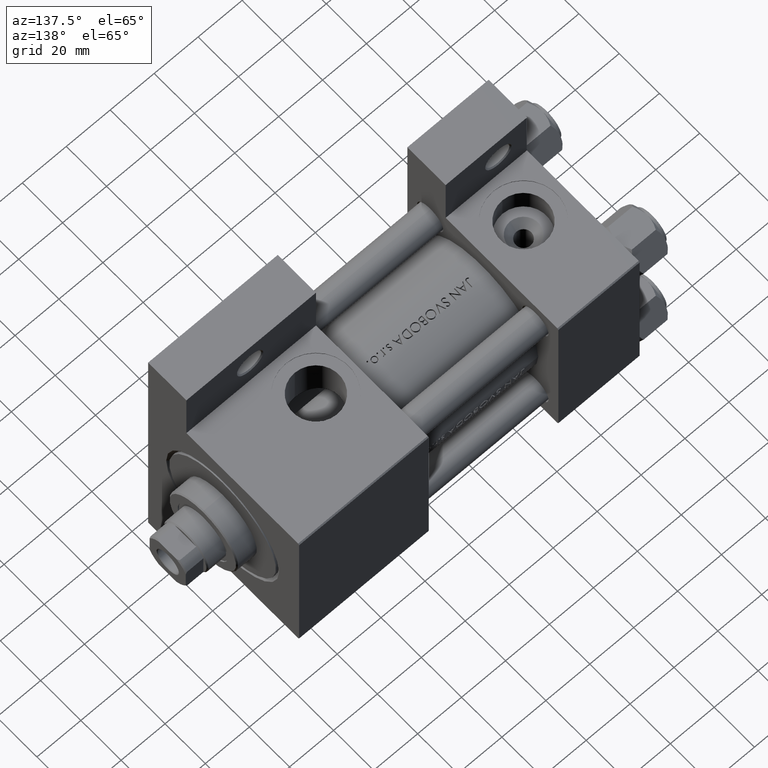
[diagram: clean part render]
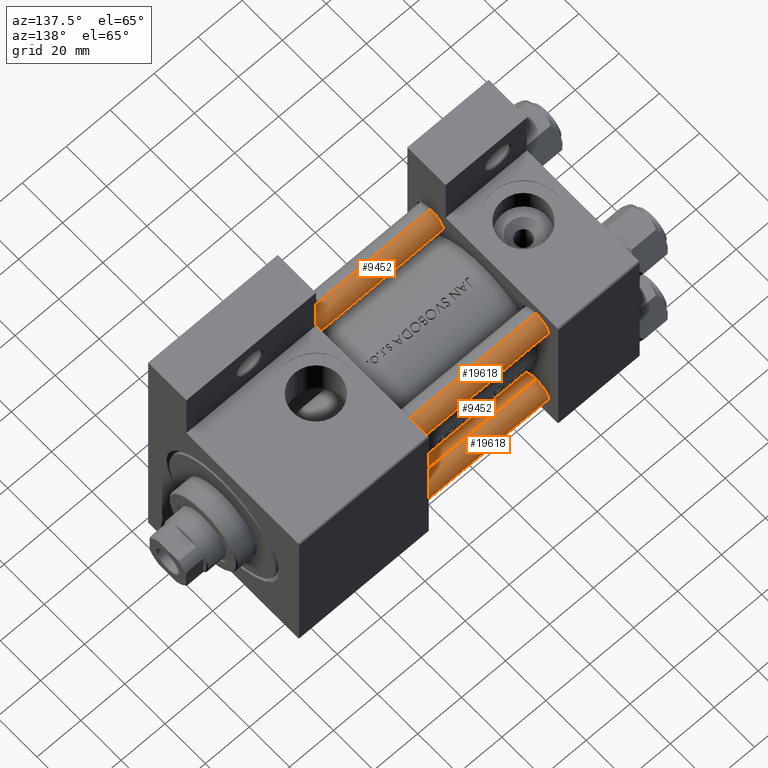
[diagram: same view with one multi-face feature highlighted, each face labeled with its STEP entity id]
A machine part, auxiliary view. The highlighted faces form ONE feature: a constant-radius fillet chain: 4 tangent blend faces with common blend radius 6 mm. The faces share edges in the B-rep.
Their STEP definitions:
[1] entity #19618 (Cylinder):
#449 = LINE ( 'NONE', #15656, #4672 ) ;
#481 = CARTESIAN_POINT ( 'NONE',  ( 0.000000000000000000, 0.000000000000000000, 125.0000000000000000 ) ) ;
#1382 = ORIENTED_EDGE ( 'NONE', *, *, #14736, .T. ) ;
#4006 = CARTESIAN_POINT ( 'NONE',  ( -6.000000000000000888, 0.000000000000000000, 124.5000000000000000 ) ) ;
#4672 = VECTOR ( 'NONE', #30845, 1000.000000000000000 ) ;
#5859 = ORIENTED_EDGE ( 'NONE', *, *, #31709, .T. ) ;
#7418 = VERTEX_POINT ( 'NONE', #13093 ) ;
#7969 = FACE_OUTER_BOUND ( 'NONE', #34407, .T. ) ;
#9539 = CARTESIAN_POINT ( 'NONE',  ( 6.000000000000000888, 7.347880794884120722E-16, 124.5000000000000000 ) ) ;
#9569 = EDGE_CURVE ( 'NONE', #23323, #7418, #449, .T. ) ;
#9900 = VECTOR ( 'NONE', #41150, 1000.000000000000000 ) ;
#11423 = CARTESIAN_POINT ( 'NONE',  ( 0.000000000000000000, 0.000000000000000000, 0.4999999999999865663 ) ) ;
#11956 = CIRCLE ( 'NONE', #19900, 6.000000000000000888 ) ;
#13093 = CARTESIAN_POINT ( 'NONE',  ( 6.000000000000000888, 7.347880794884120722E-16, 0.4999999999999865663 ) ) ;
#14689 = EDGE_CURVE ( 'NONE', #43238, #48323, #22454, .T. ) ;
#14736 = EDGE_CURVE ( 'NONE', #43238, #23323, #31359, .T. ) ;
#15656 = CARTESIAN_POINT ( 'NONE',  ( 6.000000000000000888, 7.347880794884120722E-16, 125.0000000000000000 ) ) ;
#16233 = DIRECTION ( 'NONE',  ( 0.000000000000000000, 0.000000000000000000, -1.000000000000000000 ) ) ;
#19618 = ADVANCED_FACE ( 'NONE', ( #7969 ), #23145, .T. ) ;
#19900 = AXIS2_PLACEMENT_3D ( 'NONE', #11423, #38306, #30338 ) ;
#20370 = AXIS2_PLACEMENT_3D ( 'NONE', #481, #27629, #42820 ) ;
#22454 = LINE ( 'NONE', #25951, #9900 ) ;
#23145 = CYLINDRICAL_SURFACE ( 'NONE', #20370, 6.000000000000000888 ) ;
#23323 = VERTEX_POINT ( 'NONE', #9539 ) ;
#25951 = CARTESIAN_POINT ( 'NONE',  ( -6.000000000000000888, 0.000000000000000000, 125.0000000000000000 ) ) ;
#27368 = ORIENTED_EDGE ( 'NONE', *, *, #14689, .F. ) ;
#27629 = DIRECTION ( 'NONE',  ( -0.000000000000000000, -0.000000000000000000, -1.000000000000000000 ) ) ;
#30338 = DIRECTION ( 'NONE',  ( 1.000000000000000000, 0.000000000000000000, 0.000000000000000000 ) ) ;
#30845 = DIRECTION ( 'NONE',  ( -0.000000000000000000, -0.000000000000000000, -1.000000000000000000 ) ) ;
#31175 = CARTESIAN_POINT ( 'NONE',  ( 0.000000000000000000, 0.000000000000000000, 124.5000000000000000 ) ) ;
#31359 = CIRCLE ( 'NONE', #40889, 6.000000000000000888 ) ;
#31418 = DIRECTION ( 'NONE',  ( 1.000000000000000000, 0.000000000000000000, 0.000000000000000000 ) ) ;
#31709 = EDGE_CURVE ( 'NONE', #7418, #48323, #11956, .T. ) ;
#34407 = EDGE_LOOP ( 'NONE', ( #1382, #38275, #5859, #27368 ) ) ;
#38275 = ORIENTED_EDGE ( 'NONE', *, *, #9569, .T. ) ;
#38306 = DIRECTION ( 'NONE',  ( -0.000000000000000000, -0.000000000000000000, 1.000000000000000000 ) ) ;
#39762 = CARTESIAN_POINT ( 'NONE',  ( -6.000000000000000888, 0.000000000000000000, 0.4999999999999865663 ) ) ;
#40889 = AXIS2_PLACEMENT_3D ( 'NONE', #31175, #16233, #31418 ) ;
#41150 = DIRECTION ( 'NONE',  ( -0.000000000000000000, -0.000000000000000000, -1.000000000000000000 ) ) ;
#42820 = DIRECTION ( 'NONE',  ( -1.000000000000000000, 0.000000000000000000, 0.000000000000000000 ) ) ;
#43238 = VERTEX_POINT ( 'NONE', #4006 ) ;
#48323 = VERTEX_POINT ( 'NONE', #39762 ) ;
[2] entity #9452 (Cylinder):
#449 = LINE ( 'NONE', #15656, #4672 ) ;
#3194 = CARTESIAN_POINT ( 'NONE',  ( 0.000000000000000000, 0.000000000000000000, 125.0000000000000000 ) ) ;
#4006 = CARTESIAN_POINT ( 'NONE',  ( -6.000000000000000888, 0.000000000000000000, 124.5000000000000000 ) ) ;
#4672 = VECTOR ( 'NONE', #30845, 1000.000000000000000 ) ;
#4840 = CIRCLE ( 'NONE', #47027, 6.000000000000000888 ) ;
#5768 = ORIENTED_EDGE ( 'NONE', *, *, #14689, .T. ) ;
#6393 = CARTESIAN_POINT ( 'NONE',  ( 0.000000000000000000, 0.000000000000000000, 0.4999999999999865663 ) ) ;
#6423 = ORIENTED_EDGE ( 'NONE', *, *, #41029, .T. ) ;
#6455 = FACE_OUTER_BOUND ( 'NONE', #18244, .T. ) ;
#6931 = CYLINDRICAL_SURFACE ( 'NONE', #21349, 6.000000000000000888 ) ;
#7418 = VERTEX_POINT ( 'NONE', #13093 ) ;
#9452 = ADVANCED_FACE ( 'NONE', ( #6455 ), #6931, .T. ) ;
#9539 = CARTESIAN_POINT ( 'NONE',  ( 6.000000000000000888, 7.347880794884120722E-16, 124.5000000000000000 ) ) ;
#9569 = EDGE_CURVE ( 'NONE', #23323, #7418, #449, .T. ) ;
#9900 = VECTOR ( 'NONE', #41150, 1000.000000000000000 ) ;
#10258 = DIRECTION ( 'NONE',  ( 0.000000000000000000, 0.000000000000000000, -1.000000000000000000 ) ) ;
#10981 = CARTESIAN_POINT ( 'NONE',  ( 0.000000000000000000, 0.000000000000000000, 124.5000000000000000 ) ) ;
#13093 = CARTESIAN_POINT ( 'NONE',  ( 6.000000000000000888, 7.347880794884120722E-16, 0.4999999999999865663 ) ) ;
#14689 = EDGE_CURVE ( 'NONE', #43238, #48323, #22454, .T. ) ;
#15656 = CARTESIAN_POINT ( 'NONE',  ( 6.000000000000000888, 7.347880794884120722E-16, 125.0000000000000000 ) ) ;
#18244 = EDGE_LOOP ( 'NONE', ( #20225, #6423, #5768, #42015 ) ) ;
#20225 = ORIENTED_EDGE ( 'NONE', *, *, #9569, .F. ) ;
#21349 = AXIS2_PLACEMENT_3D ( 'NONE', #3194, #21404, #44801 ) ;
#21404 = DIRECTION ( 'NONE',  ( -0.000000000000000000, -0.000000000000000000, -1.000000000000000000 ) ) ;
#22454 = LINE ( 'NONE', #25951, #9900 ) ;
#23323 = VERTEX_POINT ( 'NONE', #9539 ) ;
#25951 = CARTESIAN_POINT ( 'NONE',  ( -6.000000000000000888, 0.000000000000000000, 125.0000000000000000 ) ) ;
#28086 = DIRECTION ( 'NONE',  ( -0.000000000000000000, -0.000000000000000000, 1.000000000000000000 ) ) ;
#30845 = DIRECTION ( 'NONE',  ( -0.000000000000000000, -0.000000000000000000, -1.000000000000000000 ) ) ;
#39762 = CARTESIAN_POINT ( 'NONE',  ( -6.000000000000000888, 0.000000000000000000, 0.4999999999999865663 ) ) ;
#41029 = EDGE_CURVE ( 'NONE', #23323, #43238, #41387, .T. ) ;
#41150 = DIRECTION ( 'NONE',  ( -0.000000000000000000, -0.000000000000000000, -1.000000000000000000 ) ) ;
#41387 = CIRCLE ( 'NONE', #43807, 6.000000000000000888 ) ;
#42015 = ORIENTED_EDGE ( 'NONE', *, *, #42393, .T. ) ;
#42393 = EDGE_CURVE ( 'NONE', #48323, #7418, #4840, .T. ) ;
#43238 = VERTEX_POINT ( 'NONE', #4006 ) ;
#43807 = AXIS2_PLACEMENT_3D ( 'NONE', #10981, #10258, #48335 ) ;
#44801 = DIRECTION ( 'NONE',  ( -1.000000000000000000, 0.000000000000000000, 0.000000000000000000 ) ) ;
#47027 = AXIS2_PLACEMENT_3D ( 'NONE', #6393, #28086, #47254 ) ;
#47254 = DIRECTION ( 'NONE',  ( 1.000000000000000000, 0.000000000000000000, 0.000000000000000000 ) ) ;
#48323 = VERTEX_POINT ( 'NONE', #39762 ) ;
#48335 = DIRECTION ( 'NONE',  ( 1.000000000000000000, 0.000000000000000000, 0.000000000000000000 ) ) ;
[3] entity #19618 (Cylinder):
#449 = LINE ( 'NONE', #15656, #4672 ) ;
#481 = CARTESIAN_POINT ( 'NONE',  ( 0.000000000000000000, 0.000000000000000000, 125.0000000000000000 ) ) ;
#1382 = ORIENTED_EDGE ( 'NONE', *, *, #14736, .T. ) ;
#4006 = CARTESIAN_POINT ( 'NONE',  ( -6.000000000000000888, 0.000000000000000000, 124.5000000000000000 ) ) ;
#4672 = VECTOR ( 'NONE', #30845, 1000.000000000000000 ) ;
#5859 = ORIENTED_EDGE ( 'NONE', *, *, #31709, .T. ) ;
#7418 = VERTEX_POINT ( 'NONE', #13093 ) ;
#7969 = FACE_OUTER_BOUND ( 'NONE', #34407, .T. ) ;
#9539 = CARTESIAN_POINT ( 'NONE',  ( 6.000000000000000888, 7.347880794884120722E-16, 124.5000000000000000 ) ) ;
#9569 = EDGE_CURVE ( 'NONE', #23323, #7418, #449, .T. ) ;
#9900 = VECTOR ( 'NONE', #41150, 1000.000000000000000 ) ;
#11423 = CARTESIAN_POINT ( 'NONE',  ( 0.000000000000000000, 0.000000000000000000, 0.4999999999999865663 ) ) ;
#11956 = CIRCLE ( 'NONE', #19900, 6.000000000000000888 ) ;
#13093 = CARTESIAN_POINT ( 'NONE',  ( 6.000000000000000888, 7.347880794884120722E-16, 0.4999999999999865663 ) ) ;
#14689 = EDGE_CURVE ( 'NONE', #43238, #48323, #22454, .T. ) ;
#14736 = EDGE_CURVE ( 'NONE', #43238, #23323, #31359, .T. ) ;
#15656 = CARTESIAN_POINT ( 'NONE',  ( 6.000000000000000888, 7.347880794884120722E-16, 125.0000000000000000 ) ) ;
#16233 = DIRECTION ( 'NONE',  ( 0.000000000000000000, 0.000000000000000000, -1.000000000000000000 ) ) ;
#19618 = ADVANCED_FACE ( 'NONE', ( #7969 ), #23145, .T. ) ;
#19900 = AXIS2_PLACEMENT_3D ( 'NONE', #11423, #38306, #30338 ) ;
#20370 = AXIS2_PLACEMENT_3D ( 'NONE', #481, #27629, #42820 ) ;
#22454 = LINE ( 'NONE', #25951, #9900 ) ;
#23145 = CYLINDRICAL_SURFACE ( 'NONE', #20370, 6.000000000000000888 ) ;
#23323 = VERTEX_POINT ( 'NONE', #9539 ) ;
#25951 = CARTESIAN_POINT ( 'NONE',  ( -6.000000000000000888, 0.000000000000000000, 125.0000000000000000 ) ) ;
#27368 = ORIENTED_EDGE ( 'NONE', *, *, #14689, .F. ) ;
#27629 = DIRECTION ( 'NONE',  ( -0.000000000000000000, -0.000000000000000000, -1.000000000000000000 ) ) ;
#30338 = DIRECTION ( 'NONE',  ( 1.000000000000000000, 0.000000000000000000, 0.000000000000000000 ) ) ;
#30845 = DIRECTION ( 'NONE',  ( -0.000000000000000000, -0.000000000000000000, -1.000000000000000000 ) ) ;
#31175 = CARTESIAN_POINT ( 'NONE',  ( 0.000000000000000000, 0.000000000000000000, 124.5000000000000000 ) ) ;
#31359 = CIRCLE ( 'NONE', #40889, 6.000000000000000888 ) ;
#31418 = DIRECTION ( 'NONE',  ( 1.000000000000000000, 0.000000000000000000, 0.000000000000000000 ) ) ;
#31709 = EDGE_CURVE ( 'NONE', #7418, #48323, #11956, .T. ) ;
#34407 = EDGE_LOOP ( 'NONE', ( #1382, #38275, #5859, #27368 ) ) ;
#38275 = ORIENTED_EDGE ( 'NONE', *, *, #9569, .T. ) ;
#38306 = DIRECTION ( 'NONE',  ( -0.000000000000000000, -0.000000000000000000, 1.000000000000000000 ) ) ;
#39762 = CARTESIAN_POINT ( 'NONE',  ( -6.000000000000000888, 0.000000000000000000, 0.4999999999999865663 ) ) ;
#40889 = AXIS2_PLACEMENT_3D ( 'NONE', #31175, #16233, #31418 ) ;
#41150 = DIRECTION ( 'NONE',  ( -0.000000000000000000, -0.000000000000000000, -1.000000000000000000 ) ) ;
#42820 = DIRECTION ( 'NONE',  ( -1.000000000000000000, 0.000000000000000000, 0.000000000000000000 ) ) ;
#43238 = VERTEX_POINT ( 'NONE', #4006 ) ;
#48323 = VERTEX_POINT ( 'NONE', #39762 ) ;
[4] entity #9452 (Cylinder):
#449 = LINE ( 'NONE', #15656, #4672 ) ;
#3194 = CARTESIAN_POINT ( 'NONE',  ( 0.000000000000000000, 0.000000000000000000, 125.0000000000000000 ) ) ;
#4006 = CARTESIAN_POINT ( 'NONE',  ( -6.000000000000000888, 0.000000000000000000, 124.5000000000000000 ) ) ;
#4672 = VECTOR ( 'NONE', #30845, 1000.000000000000000 ) ;
#4840 = CIRCLE ( 'NONE', #47027, 6.000000000000000888 ) ;
#5768 = ORIENTED_EDGE ( 'NONE', *, *, #14689, .T. ) ;
#6393 = CARTESIAN_POINT ( 'NONE',  ( 0.000000000000000000, 0.000000000000000000, 0.4999999999999865663 ) ) ;
#6423 = ORIENTED_EDGE ( 'NONE', *, *, #41029, .T. ) ;
#6455 = FACE_OUTER_BOUND ( 'NONE', #18244, .T. ) ;
#6931 = CYLINDRICAL_SURFACE ( 'NONE', #21349, 6.000000000000000888 ) ;
#7418 = VERTEX_POINT ( 'NONE', #13093 ) ;
#9452 = ADVANCED_FACE ( 'NONE', ( #6455 ), #6931, .T. ) ;
#9539 = CARTESIAN_POINT ( 'NONE',  ( 6.000000000000000888, 7.347880794884120722E-16, 124.5000000000000000 ) ) ;
#9569 = EDGE_CURVE ( 'NONE', #23323, #7418, #449, .T. ) ;
#9900 = VECTOR ( 'NONE', #41150, 1000.000000000000000 ) ;
#10258 = DIRECTION ( 'NONE',  ( 0.000000000000000000, 0.000000000000000000, -1.000000000000000000 ) ) ;
#10981 = CARTESIAN_POINT ( 'NONE',  ( 0.000000000000000000, 0.000000000000000000, 124.5000000000000000 ) ) ;
#13093 = CARTESIAN_POINT ( 'NONE',  ( 6.000000000000000888, 7.347880794884120722E-16, 0.4999999999999865663 ) ) ;
#14689 = EDGE_CURVE ( 'NONE', #43238, #48323, #22454, .T. ) ;
#15656 = CARTESIAN_POINT ( 'NONE',  ( 6.000000000000000888, 7.347880794884120722E-16, 125.0000000000000000 ) ) ;
#18244 = EDGE_LOOP ( 'NONE', ( #20225, #6423, #5768, #42015 ) ) ;
#20225 = ORIENTED_EDGE ( 'NONE', *, *, #9569, .F. ) ;
#21349 = AXIS2_PLACEMENT_3D ( 'NONE', #3194, #21404, #44801 ) ;
#21404 = DIRECTION ( 'NONE',  ( -0.000000000000000000, -0.000000000000000000, -1.000000000000000000 ) ) ;
#22454 = LINE ( 'NONE', #25951, #9900 ) ;
#23323 = VERTEX_POINT ( 'NONE', #9539 ) ;
#25951 = CARTESIAN_POINT ( 'NONE',  ( -6.000000000000000888, 0.000000000000000000, 125.0000000000000000 ) ) ;
#28086 = DIRECTION ( 'NONE',  ( -0.000000000000000000, -0.000000000000000000, 1.000000000000000000 ) ) ;
#30845 = DIRECTION ( 'NONE',  ( -0.000000000000000000, -0.000000000000000000, -1.000000000000000000 ) ) ;
#39762 = CARTESIAN_POINT ( 'NONE',  ( -6.000000000000000888, 0.000000000000000000, 0.4999999999999865663 ) ) ;
#41029 = EDGE_CURVE ( 'NONE', #23323, #43238, #41387, .T. ) ;
#41150 = DIRECTION ( 'NONE',  ( -0.000000000000000000, -0.000000000000000000, -1.000000000000000000 ) ) ;
#41387 = CIRCLE ( 'NONE', #43807, 6.000000000000000888 ) ;
#42015 = ORIENTED_EDGE ( 'NONE', *, *, #42393, .T. ) ;
#42393 = EDGE_CURVE ( 'NONE', #48323, #7418, #4840, .T. ) ;
#43238 = VERTEX_POINT ( 'NONE', #4006 ) ;
#43807 = AXIS2_PLACEMENT_3D ( 'NONE', #10981, #10258, #48335 ) ;
#44801 = DIRECTION ( 'NONE',  ( -1.000000000000000000, 0.000000000000000000, 0.000000000000000000 ) ) ;
#47027 = AXIS2_PLACEMENT_3D ( 'NONE', #6393, #28086, #47254 ) ;
#47254 = DIRECTION ( 'NONE',  ( 1.000000000000000000, 0.000000000000000000, 0.000000000000000000 ) ) ;
#48323 = VERTEX_POINT ( 'NONE', #39762 ) ;
#48335 = DIRECTION ( 'NONE',  ( 1.000000000000000000, 0.000000000000000000, 0.000000000000000000 ) ) ;